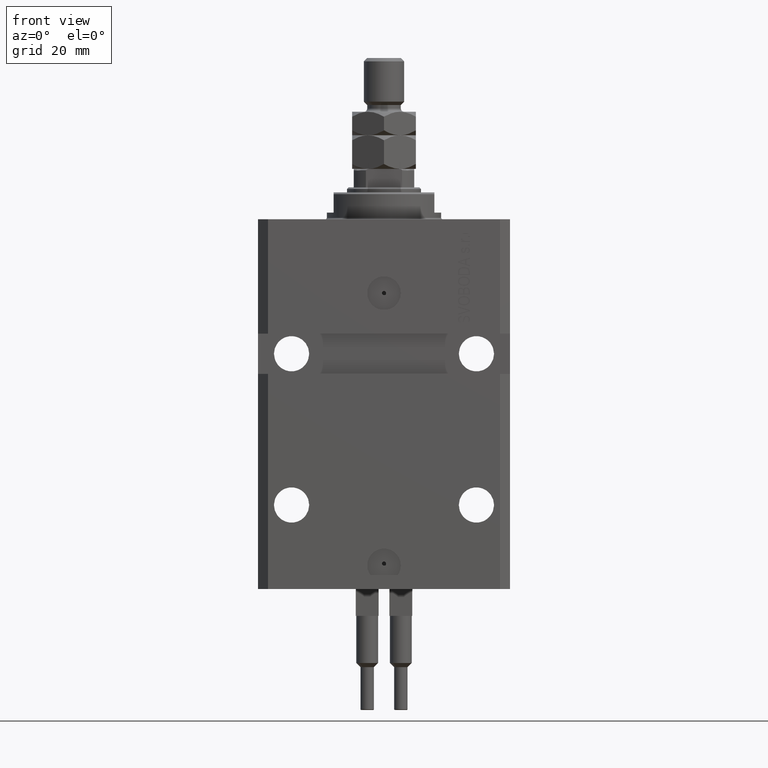
[diagram: clean part render]
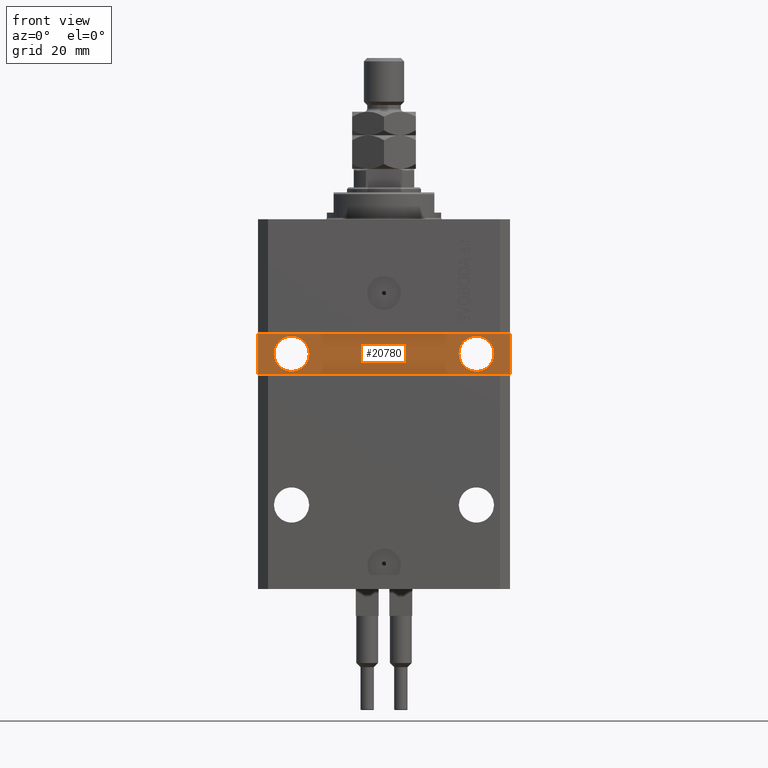
[diagram: same view with one face highlighted and labeled with its STEP entity id]
A machine part, front view. The second image highlights one B-rep face of the part: STEP entity #20780.
In plain terms, the highlighted planar face has unit normal (0, -1, 0).
Its self-contained STEP definition (entity closure, byte-faithful):
#301 = CARTESIAN_POINT ( 'NONE',  ( 22.25000000000001421, -24.49999999999999289, -40.00000000000000000 ) ) ;
#346 = EDGE_CURVE ( 'NONE', #17607, #7817, #29299, .T. ) ;
#442 = EDGE_CURVE ( 'NONE', #25960, #40301, #2496, .T. ) ;
#2047 = CARTESIAN_POINT ( 'NONE',  ( 32.75000000000000000, -24.49999999999999289, -40.00000000000000000 ) ) ;
#2180 = EDGE_CURVE ( 'NONE', #28170, #28182, #46876, .T. ) ;
#2496 = LINE ( 'NONE', #26868, #5752 ) ;
#2600 = VECTOR ( 'NONE', #39222, 1000.000000000000000 ) ;
#2776 = DIRECTION ( 'NONE',  ( 9.251858538542974046E-17, -1.000000000000000000, 0.000000000000000000 ) ) ;
#2939 = VERTEX_POINT ( 'NONE', #2047 ) ;
#5527 = CIRCLE ( 'NONE', #37155, 5.249999999999997335 ) ;
#5752 = VECTOR ( 'NONE', #42901, 1000.000000000000000 ) ;
#6060 = DIRECTION ( 'NONE',  ( 1.101411730780568590E-16, -1.000000000000000000, 0.000000000000000000 ) ) ;
#6325 = PLANE ( 'NONE',  #36328 ) ;
#7817 = VERTEX_POINT ( 'NONE', #13581 ) ;
#7939 = DIRECTION ( 'NONE',  ( 1.171720209325604191E-16, -1.000000000000000000, 0.000000000000000000 ) ) ;
#8220 = CARTESIAN_POINT ( 'NONE',  ( -37.50000000000000000, -24.50000000000000000, -46.00000000000000000 ) ) ;
#8487 = CARTESIAN_POINT ( 'NONE',  ( 27.50000000000000711, -24.49999999999999289, -40.00000000000000000 ) ) ;
#8781 = DIRECTION ( 'NONE',  ( 1.101411730780568590E-16, -1.000000000000000000, 0.000000000000000000 ) ) ;
#9905 = EDGE_LOOP ( 'NONE', ( #27885, #19667 ) ) ;
#10223 = CARTESIAN_POINT ( 'NONE',  ( -22.24999999999999645, -24.50000000000000000, -40.00000000000000711 ) ) ;
#10268 = AXIS2_PLACEMENT_3D ( 'NONE', #11762, #7939, #23190 ) ;
#10745 = LINE ( 'NONE', #49420, #13578 ) ;
#10758 = VECTOR ( 'NONE', #41501, 1000.000000000000000 ) ;
#11762 = CARTESIAN_POINT ( 'NONE',  ( 27.50000000000000711, -24.49999999999999289, -40.00000000000000000 ) ) ;
#13578 = VECTOR ( 'NONE', #14320, 1000.000000000000000 ) ;
#13581 = CARTESIAN_POINT ( 'NONE',  ( -32.74999999999999289, -24.50000000000000000, -40.00000000000000711 ) ) ;
#13813 = LINE ( 'NONE', #33618, #10758 ) ;
#13962 = DIRECTION ( 'NONE',  ( 1.000000000000000000, 9.251858538542974046E-17, 0.000000000000000000 ) ) ;
#14320 = DIRECTION ( 'NONE',  ( 1.000000000000000000, 9.251858538542972814E-17, -9.251858538542972814E-17 ) ) ;
#15545 = ORIENTED_EDGE ( 'NONE', *, *, #42661, .T. ) ;
#15553 = EDGE_CURVE ( 'NONE', #23988, #2939, #25690, .T. ) ;
#16769 = EDGE_CURVE ( 'NONE', #40301, #28170, #10745, .T. ) ;
#17607 = VERTEX_POINT ( 'NONE', #10223 ) ;
#18570 = CARTESIAN_POINT ( 'NONE',  ( 37.49999999999999289, -24.49999999999999289, -33.99999999999997868 ) ) ;
#19667 = ORIENTED_EDGE ( 'NONE', *, *, #21295, .F. ) ;
#20780 = ADVANCED_FACE ( 'NONE', ( #48807, #41901, #33758 ), #6325, .T. ) ;
#21210 = DIRECTION ( 'NONE',  ( 1.000000000000000000, 0.000000000000000000, 0.000000000000000000 ) ) ;
#21295 = EDGE_CURVE ( 'NONE', #7817, #17607, #5527, .T. ) ;
#21511 = ORIENTED_EDGE ( 'NONE', *, *, #442, .T. ) ;
#21765 = AXIS2_PLACEMENT_3D ( 'NONE', #8487, #23993, #39509 ) ;
#21828 = CARTESIAN_POINT ( 'NONE',  ( 2.191435984341281325E-15, -24.49999999999999645, 0.000000000000000000 ) ) ;
#23190 = DIRECTION ( 'NONE',  ( 1.000000000000000000, 0.000000000000000000, 0.000000000000000000 ) ) ;
#23988 = VERTEX_POINT ( 'NONE', #301 ) ;
#23993 = DIRECTION ( 'NONE',  ( 1.171720209325604191E-16, -1.000000000000000000, 0.000000000000000000 ) ) ;
#24259 = ORIENTED_EDGE ( 'NONE', *, *, #2180, .T. ) ;
#25690 = CIRCLE ( 'NONE', #10268, 5.249999999999994671 ) ;
#25857 = CARTESIAN_POINT ( 'NONE',  ( -27.49999999999999289, -24.50000000000000000, -40.00000000000000711 ) ) ;
#25960 = VERTEX_POINT ( 'NONE', #37769 ) ;
#26525 = EDGE_LOOP ( 'NONE', ( #47596, #28910 ) ) ;
#26868 = CARTESIAN_POINT ( 'NONE',  ( -37.50000000000000000, -24.50000000000000000, -34.00000000000000000 ) ) ;
#27885 = ORIENTED_EDGE ( 'NONE', *, *, #346, .F. ) ;
#28170 = VERTEX_POINT ( 'NONE', #49857 ) ;
#28182 = VERTEX_POINT ( 'NONE', #18570 ) ;
#28910 = ORIENTED_EDGE ( 'NONE', *, *, #15553, .F. ) ;
#29299 = CIRCLE ( 'NONE', #39883, 5.249999999999997335 ) ;
#31841 = CARTESIAN_POINT ( 'NONE',  ( 37.49999999999999289, -24.49999999999999289, -46.00000000000000711 ) ) ;
#32702 = ORIENTED_EDGE ( 'NONE', *, *, #16769, .T. ) ;
#33040 = EDGE_CURVE ( 'NONE', #2939, #23988, #48690, .T. ) ;
#33618 = CARTESIAN_POINT ( 'NONE',  ( 37.49999999999999289, -24.49999999999999289, -33.99999999999997868 ) ) ;
#33758 = FACE_OUTER_BOUND ( 'NONE', #46562, .T. ) ;
#36328 = AXIS2_PLACEMENT_3D ( 'NONE', #21828, #2776, #13962 ) ;
#37155 = AXIS2_PLACEMENT_3D ( 'NONE', #43627, #8781, #21210 ) ;
#37769 = CARTESIAN_POINT ( 'NONE',  ( -37.50000000000000000, -24.50000000000000000, -34.00000000000000000 ) ) ;
#39222 = DIRECTION ( 'NONE',  ( 0.000000000000000000, 0.000000000000000000, 1.000000000000000000 ) ) ;
#39509 = DIRECTION ( 'NONE',  ( 1.000000000000000000, 0.000000000000000000, 0.000000000000000000 ) ) ;
#39883 = AXIS2_PLACEMENT_3D ( 'NONE', #25857, #6060, #45214 ) ;
#40301 = VERTEX_POINT ( 'NONE', #8220 ) ;
#41501 = DIRECTION ( 'NONE',  ( -1.000000000000000000, -9.251858538542972814E-17, -2.775557561562891844E-16 ) ) ;
#41901 = FACE_BOUND ( 'NONE', #9905, .T. ) ;
#42661 = EDGE_CURVE ( 'NONE', #28182, #25960, #13813, .T. ) ;
#42901 = DIRECTION ( 'NONE',  ( 0.000000000000000000, 0.000000000000000000, -1.000000000000000000 ) ) ;
#43627 = CARTESIAN_POINT ( 'NONE',  ( -27.49999999999999289, -24.50000000000000000, -40.00000000000000711 ) ) ;
#45214 = DIRECTION ( 'NONE',  ( 1.000000000000000000, 0.000000000000000000, 0.000000000000000000 ) ) ;
#46562 = EDGE_LOOP ( 'NONE', ( #32702, #24259, #15545, #21511 ) ) ;
#46876 = LINE ( 'NONE', #31841, #2600 ) ;
#47596 = ORIENTED_EDGE ( 'NONE', *, *, #33040, .F. ) ;
#48690 = CIRCLE ( 'NONE', #21765, 5.249999999999994671 ) ;
#48807 = FACE_BOUND ( 'NONE', #26525, .T. ) ;
#49420 = CARTESIAN_POINT ( 'NONE',  ( -37.50000000000000000, -24.50000000000000000, -46.00000000000000000 ) ) ;
#49857 = CARTESIAN_POINT ( 'NONE',  ( 37.49999999999999289, -24.49999999999999289, -46.00000000000000711 ) ) ;